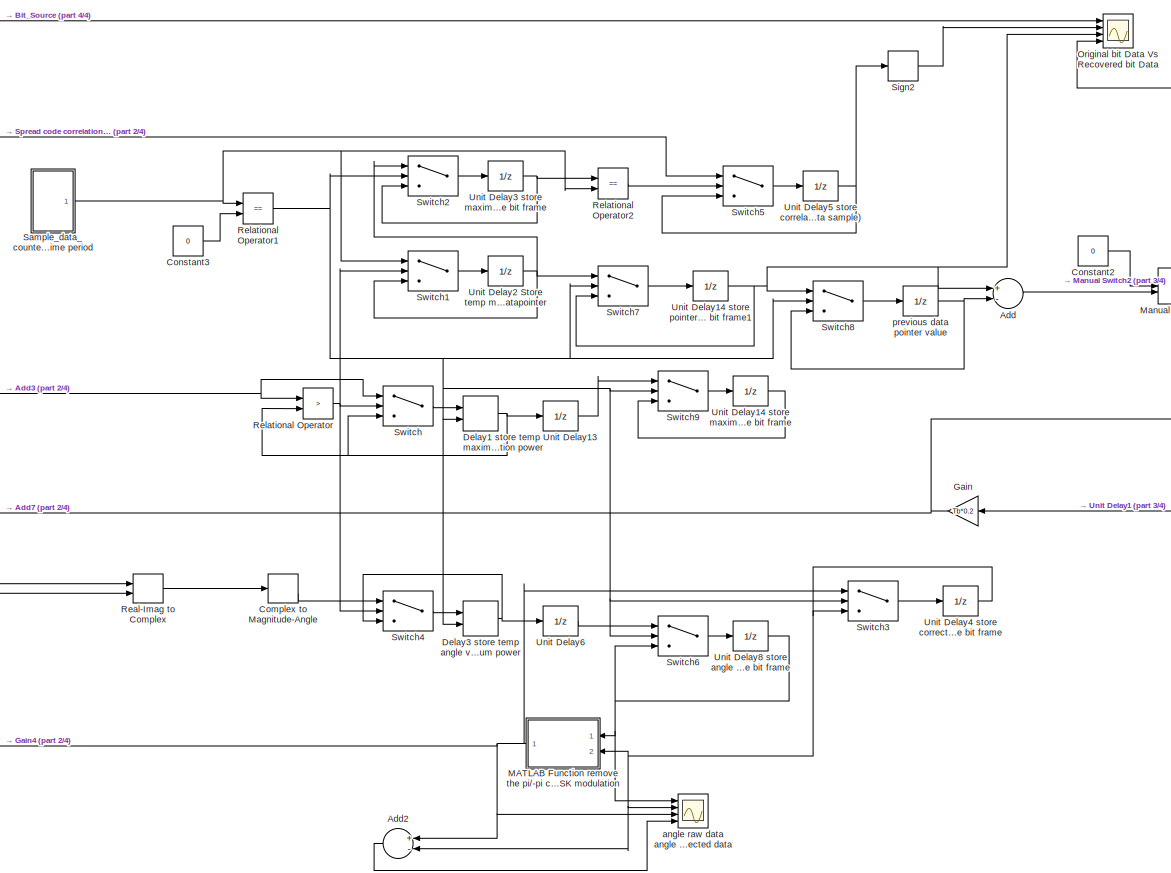
[diagram: root canvas - part 1/4, right side, full height]
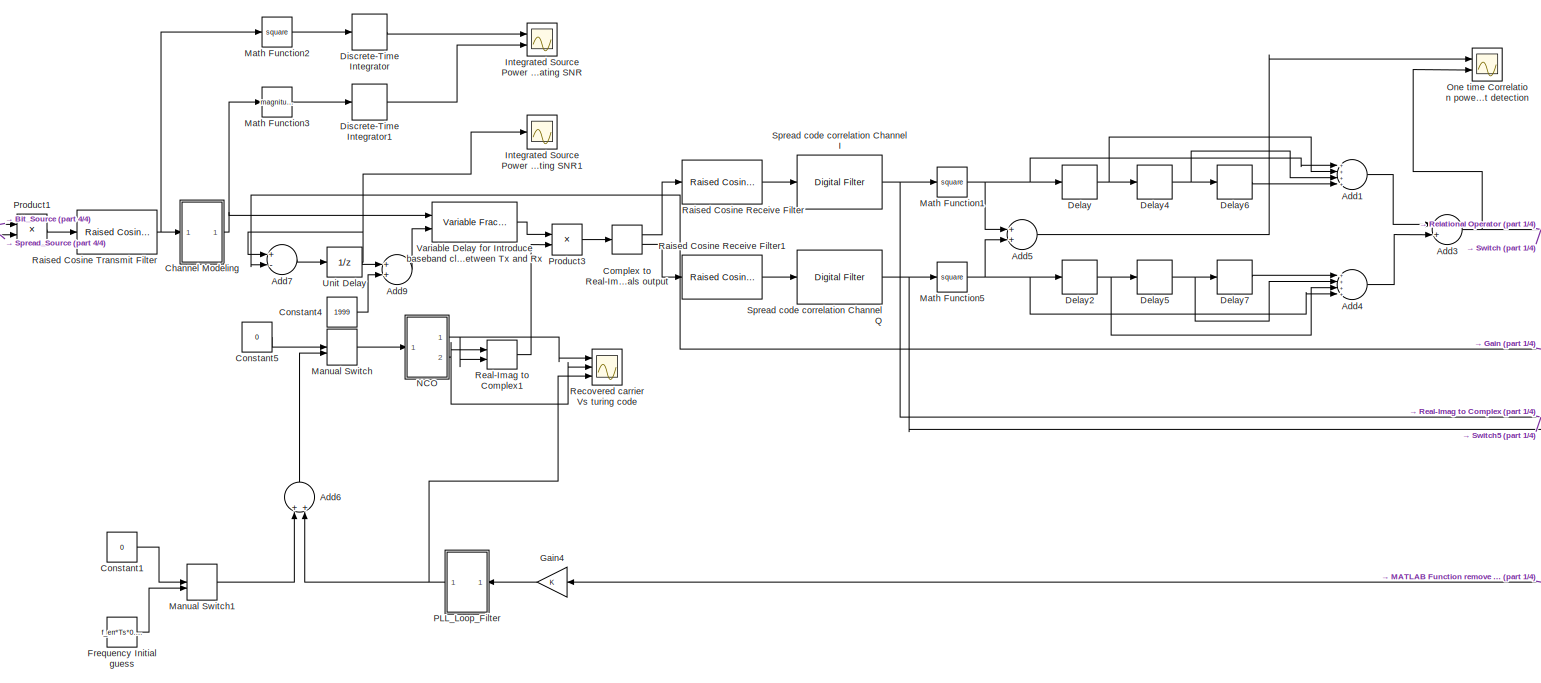
[diagram: root canvas - part 2/4, left side, full height]
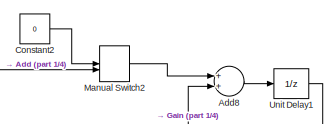
[diagram: root canvas - part 3/4, middle right region]
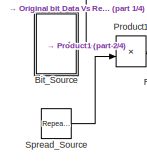
[diagram: root canvas - part 4/4, middle left region]
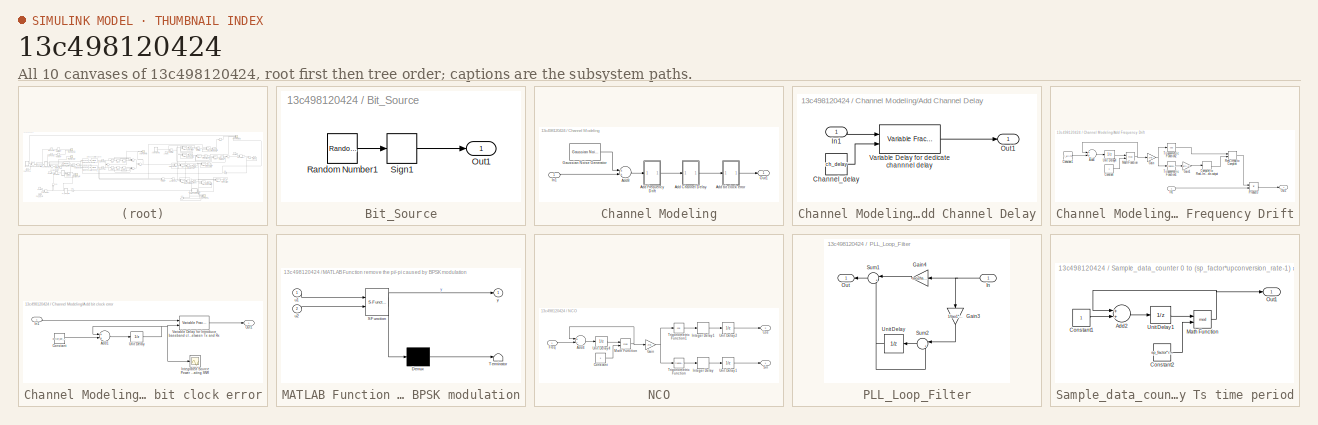
[diagram: thumbnail index - all 10 canvases of the model, root first then tree order]
MODEL slx_13c498120424
KIND model
BLOCK [Sum] Add
  InputSameDT = off
  Inputs = +-
  OutDataTypeStr = Inherit: Inherit via internal rule
  Ports = [2, 1]
  SaturateOnIntegerOverflow = off
BLOCK [Sum] Add1
  InputSameDT = off
  Inputs = ++++
  OutDataTypeStr = Inherit: Inherit via internal rule
  Ports = [4, 1]
  SaturateOnIntegerOverflow = off
BLOCK [Sum] Add2
  InputSameDT = off
  Inputs = +-
  OutDataTypeStr = Inherit: Inherit via internal rule
  Ports = [2, 1]
  SaturateOnIntegerOverflow = off
BLOCK [Sum] Add3
  InputSameDT = off
  OutDataTypeStr = Inherit: Inherit via internal rule
  Ports = [2, 1]
  SaturateOnIntegerOverflow = off
BLOCK [Sum] Add4
  InputSameDT = off
  Inputs = ++++
  OutDataTypeStr = Inherit: Inherit via internal rule
  Ports = [4, 1]
  SaturateOnIntegerOverflow = off
BLOCK [Sum] Add5
  InputSameDT = off
  OutDataTypeStr = Inherit: Inherit via internal rule
  Ports = [2, 1]
  SaturateOnIntegerOverflow = off
BLOCK [Sum] Add6
  InputSameDT = off
  OutDataTypeStr = Inherit: Inherit via internal rule
  Ports = [2, 1]
  SaturateOnIntegerOverflow = off
BLOCK [Sum] Add7
  InputSameDT = off
  Inputs = +-
  OutDataTypeStr = Inherit: Inherit via internal rule
  Ports = [2, 1]
  SaturateOnIntegerOverflow = off
BLOCK [Sum] Add8
  InputSameDT = off
  OutDataTypeStr = Inherit: Inherit via internal rule
  Ports = [2, 1]
  SaturateOnIntegerOverflow = off
BLOCK [Sum] Add9
  InputSameDT = off
  OutDataTypeStr = Inherit: Inherit via internal rule
  Ports = [2, 1]
  SaturateOnIntegerOverflow = off
BLOCK [SubSystem] Bit_Source
  Ports = [0, 1]
  RequestExecContextInheritance = off
BLOCK [Outport] Bit_Source/Out1
  IconDisplay = Port number
BLOCK [RandomNumber] Bit_Source/Random Number1
  SampleTime = Tb
  Seed = 157
BLOCK [Signum] Bit_Source/Sign1
BLOCK [SubSystem] Channel Modeling
  Ports = [1, 1]
  RequestExecContextInheritance = off
BLOCK [SubSystem] Channel Modeling/Add Channel Delay
  Ports = [1, 1]
  RequestExecContextInheritance = off
BLOCK [Constant] Channel Modeling/Add Channel Delay/Channel_delay
  Value = ch_delay
BLOCK [Inport] Channel Modeling/Add Channel Delay/In1
  IconDisplay = Port number
BLOCK [Outport] Channel Modeling/Add Channel Delay/Out1
  IconDisplay = Port number
BLOCK [Reference] Channel Modeling/Add Channel Delay/Variable Delay for dedicate channnel delay  REF=dspsigops/Variable
Fractional Delay
  FarrowL = 4
  InputProcessing = Columns as channels (frame based)
  L = 4
  LockScale = off
  Ports = [2, 1]
  R = 10
  SourceBlock = dspsigops/Variable\nFractional Delay
  SourceType = Variable Fractional Delay
  UserDataPersistent = on
  accumFracLength = 10
  accumMode = Same as product output
  accumWordLength = 32
  alpha = 1
  dmax = 100
  fallbackFIR = Clip to the minimum value necessary for centered kernel
  fallbackFarrow = Clip to the minimum value necessary for centered kernel
  firstCoeffFracLength = 0
  firstCoeffMode = Same word length as input
  firstCoeffWordLength = 32
  ic = 0
  interProdFracLength = 10
  interProdMode = Same as first input
  interProdWordLength = 32
  memoryFracLength = 10
  memoryMode = Same as first input
  memoryWordLength = 32
  mode = OBSOLETE
  modeActive = Farrow
  noDFT = off
  outputFracLength = 10
  outputMode = Same as accumulator
  outputWordLength = 32
  overflowMode = off
  prodOutputFracLength = 10
  prodOutputMode = Same as first input
  prodOutputWordLength = 32
  roundingMode = Zero
  secondCoeffFracLength = 10
  secondCoeffMode = Same as first input
  secondCoeffWordLength = 32
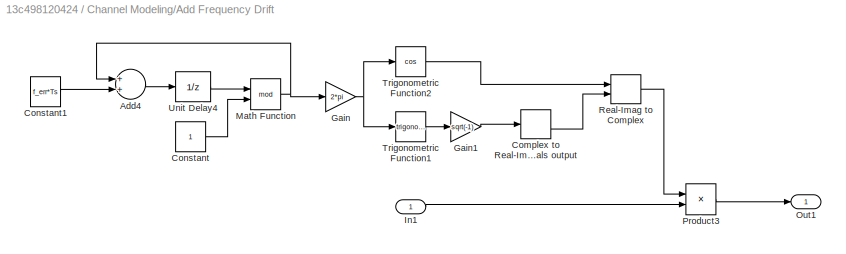
BLOCK [SubSystem] Channel Modeling/Add Frequency Drift
  Ports = [1, 1]
  RequestExecContextInheritance = off
BLOCK [Sum] Channel Modeling/Add Frequency Drift/Add4
  InputSameDT = off
  OutDataTypeStr = Inherit: Inherit via internal rule
  Ports = [2, 1]
  SaturateOnIntegerOverflow = off
BLOCK [ComplexToRealImag] Channel Modeling/Add Frequency Drift/Complex to Real-Imag IQ  signals output
  Ports = [1, 2]
BLOCK [Constant] Channel Modeling/Add Frequency Drift/Constant
BLOCK [Constant] Channel Modeling/Add Frequency Drift/Constant1
  Value = f_err*Ts
BLOCK [Gain] Channel Modeling/Add Frequency Drift/Gain
  Gain = 2*pi
  OutDataTypeStr = Inherit: Inherit via internal rule
  ParamDataTypeStr = Inherit: Inherit via internal rule
  SaturateOnIntegerOverflow = off
BLOCK [Gain] Channel Modeling/Add Frequency Drift/Gain1
  Gain = sqrt(-1)
  OutDataTypeStr = Inherit: Inherit via internal rule
  ParamDataTypeStr = Inherit: Inherit via internal rule
  SaturateOnIntegerOverflow = off
BLOCK [Inport] Channel Modeling/Add Frequency Drift/In1
  IconDisplay = Port number
BLOCK [Math] Channel Modeling/Add Frequency Drift/Math Function
  Operator = mod
  Ports = [2, 1]
BLOCK [Outport] Channel Modeling/Add Frequency Drift/Out1
  IconDisplay = Port number
BLOCK [Product] Channel Modeling/Add Frequency Drift/Product3
  InputSameDT = off
  OutDataTypeStr = Inherit: Inherit via internal rule
  Ports = [2, 1]
  RndMeth = Floor
  SaturateOnIntegerOverflow = off
BLOCK [RealImagToComplex] Channel Modeling/Add Frequency Drift/Real-Imag to Complex
  Ports = [2, 1]
BLOCK [Trigonometry] Channel Modeling/Add Frequency Drift/Trigonometric Function1
  Ports = [1, 1]
BLOCK [Trigonometry] Channel Modeling/Add Frequency Drift/Trigonometric Function2
  Operator = cos
  Ports = [1, 1]
BLOCK [UnitDelay] Channel Modeling/Add Frequency Drift/Unit Delay4
  InputProcessing = Elements as channels (sample based)
  SampleTime = Ts
BLOCK [SubSystem] Channel Modeling/Add bit clock error
  Ports = [1, 1]
  RequestExecContextInheritance = off
BLOCK [Sum] Channel Modeling/Add bit clock error/Add1
  InputSameDT = off
  OutDataTypeStr = Inherit: Inherit via internal rule
  Ports = [2, 1]
  SaturateOnIntegerOverflow = off
BLOCK [Constant] Channel Modeling/Add bit clock error/Constant
  Value = deltaT_per_sample
BLOCK [Inport] Channel Modeling/Add bit clock error/In1
  IconDisplay = Port number
BLOCK [Scope] Channel Modeling/Add bit clock error/Integrated Source Power and Noise Power for Calculating SNR
  DataFormat = StructureWithTime
  Floating = off
  LimitDataPoints = off
  NumInputPorts = 1
  Ports = [1]
  SampleTime = 0
  SaveName = ScopeData5
  ShowLegends = off
  YMax = 15
  YMin = 0
  ZoomMode = yonly
BLOCK [Outport] Channel Modeling/Add bit clock error/Out1
  IconDisplay = Port number
BLOCK [UnitDelay] Channel Modeling/Add bit clock error/Unit Delay
  InputProcessing = Elements as channels (sample based)
  SampleTime = Ts
BLOCK [Reference] Channel Modeling/Add bit clock error/Variable Delay for Introduce baseband clock error between Tx and Rx   REF=dspsigops/Variable
Fractional Delay
  FarrowL = 4
  InputProcessing = Columns as channels (frame based)
  L = 4
  LockScale = off
  Ports = [2, 1]
  R = 10
  SourceBlock = dspsigops/Variable\nFractional Delay
  SourceType = Variable Fractional Delay
  UserDataPersistent = on
  accumFracLength = 10
  accumMode = Same as product output
  accumWordLength = 32
  alpha = 1
  dmax = 2000
  fallbackFIR = Clip to the minimum value necessary for centered kernel
  fallbackFarrow = Clip to the minimum value necessary for centered kernel
  firstCoeffFracLength = 0
  firstCoeffMode = Same word length as input
  firstCoeffWordLength = 32
  ic = 0
  interProdFracLength = 10
  interProdMode = Same as first input
  interProdWordLength = 32
  memoryFracLength = 10
  memoryMode = Same as first input
  memoryWordLength = 32
  mode = OBSOLETE
  modeActive = Linear
  noDFT = off
  outputFracLength = 10
  outputMode = Same as accumulator
  outputWordLength = 32
  overflowMode = off
  prodOutputFracLength = 10
  prodOutputMode = Same as first input
  prodOutputWordLength = 32
  roundingMode = Zero
  secondCoeffFracLength = 10
  secondCoeffMode = Same as first input
  secondCoeffWordLength = 32
BLOCK [Sum] Channel Modeling/Add8
  InputSameDT = off
  OutDataTypeStr = Inherit: Inherit via internal rule
  Ports = [2, 1]
  SaturateOnIntegerOverflow = off
BLOCK [Reference] Channel Modeling/Gaussian Noise Generator  REF=commnoisgen2/Gaussian Noise
Generator
  Ports = [0, 1]
  SourceBlock = commnoisgen2/Gaussian Noise\nGenerator
  SourceType = Gaussian Noise Generator
  Ts = Ts
  d = 1
  frameBased = off
  m = 0
  orient = off
  outDataType = double
  s = 41
  sampPerFrame = 1
BLOCK [Inport] Channel Modeling/In1
  IconDisplay = Port number
BLOCK [Outport] Channel Modeling/Out1
  IconDisplay = Port number
BLOCK [ComplexToMagnitudeAngle] Complex to Magnitude-Angle
  Ports = [1, 2]
BLOCK [ComplexToRealImag] Complex to Real-Imag IQ  signals output
  Ports = [1, 2]
BLOCK [Constant] Constant1
  Value = 0
BLOCK [Constant] Constant2
  Value = 0
BLOCK [Constant] Constant3
  Value = 0
BLOCK [Constant] Constant4
  Value = 1999
BLOCK [Constant] Constant5
  Value = 0
BLOCK [Delay] Delay
  DelayLength = sp_factor*rrc_multiply_rate
  InputPortMap = u0
  Ports = [1, 1]
BLOCK [Delay] Delay1 store temp maximum correlation power
  DelayLength = 1
  ExternalReset = Rising
  InputPortMap = u0,r5
  InputProcessing = Columns as channels (frame based)
  Ports = [2, 1]
BLOCK [Delay] Delay2
  DelayLength = sp_factor*rrc_multiply_rate
  InputPortMap = u0
  Ports = [1, 1]
BLOCK [Delay] Delay3 store temp angle value at temp maximum power
  DelayLength = 1
  ExternalReset = Rising
  InputPortMap = u0,r5
  InputProcessing = Columns as channels (frame based)
  Ports = [2, 1]
BLOCK [Delay] Delay4
  DelayLength = sp_factor*rrc_multiply_rate
  InputPortMap = u0
  Ports = [1, 1]
BLOCK [Delay] Delay5
  DelayLength = sp_factor*rrc_multiply_rate
  InputPortMap = u0
  Ports = [1, 1]
BLOCK [Delay] Delay6
  DelayLength = sp_factor*rrc_multiply_rate
  InputPortMap = u0
  Ports = [1, 1]
BLOCK [Delay] Delay7
  DelayLength = sp_factor*rrc_multiply_rate
  InputPortMap = u0
  Ports = [1, 1]
BLOCK [DiscreteIntegrator] Discrete-Time Integrator
  ICPrevOutput = DiscIntNeverNeededParam
  ICPrevScaledInput = DiscIntNeverNeededParam
  Ports = [1, 1]
  SampleTime = -1
BLOCK [DiscreteIntegrator] Discrete-Time Integrator1
  ICPrevOutput = DiscIntNeverNeededParam
  ICPrevScaledInput = DiscIntNeverNeededParam
  Ports = [1, 1]
  SampleTime = -1
BLOCK [Constant] Frequency Initial guess
  Value = f_err*Ts*0.95
BLOCK [Gain] Gain
  Gain = Tb*0.2
  OutDataTypeStr = Inherit: Inherit via internal rule
  ParamDataTypeStr = Inherit: Inherit via internal rule
  SaturateOnIntegerOverflow = off
BLOCK [Gain] Gain4
  OutDataTypeStr = Inherit: Inherit via internal rule
  ParamDataTypeStr = Inherit: Inherit via internal rule
  SampleTime = Tb
  SaturateOnIntegerOverflow = off
BLOCK [Scope] Integrated Source Power and Noise Power for Calculating SNR
  DataFormat = StructureWithTime
  Floating = off
  LimitDataPoints = off
  NumInputPorts = 2
  Ports = [2]
  SampleTime = 0
  SaveName = ScopeData2
  ShowLegends = off
  YMax = 0.00475~5.25
  YMin = 0~0
  ZoomMode = yonly
BLOCK [Scope] Integrated Source Power and Noise Power for Calculating SNR1
  DataFormat = StructureWithTime
  Floating = off
  LimitDataPoints = off
  NumInputPorts = 1
  Ports = [1]
  SampleTime = 0
  SaveName = ScopeData6
  ShowLegends = off
  YMax = 0
  YMin = -13
  ZoomMode = yonly
BLOCK [SubSystem] MATLAB Function remove the pi//-pi caused by BPSK modulation
  ErrorFcn = Stateflow.Translate.translate
  PermitHierarchicalResolution = ExplicitOnly
  Ports = [2, 1]
  RequestExecContextInheritance = off
  SFBlockType = MATLAB Function
  TreatAsAtomicUnit = on
BLOCK [Demux] MATLAB Function remove the pi//-pi caused by BPSK modulation/ Demux 
  Outputs = 1
  Ports = [1, 1]
BLOCK [S-Function] MATLAB Function remove the pi//-pi caused by BPSK modulation/ SFunction 
  EnableBusSupport = on
  FunctionName = sf_sfun
  PortCounts = [2 2]
  Ports = [2, 2]
  Tag = Stateflow S-Function spcomm2 2
BLOCK [Terminator] MATLAB Function remove the pi//-pi caused by BPSK modulation/ Terminator 
BLOCK [Inport] MATLAB Function remove the pi//-pi caused by BPSK modulation/u1
  IconDisplay = Port number
BLOCK [Inport] MATLAB Function remove the pi//-pi caused by BPSK modulation/u2
  IconDisplay = Port number
  Port = 2
BLOCK [Outport] MATLAB Function remove the pi//-pi caused by BPSK modulation/y
  IconDisplay = Port number
BLOCK [ManualSwitch] Manual Switch
  CurrentSetting = 0
BLOCK [ManualSwitch] Manual Switch1
  CurrentSetting = 0
BLOCK [ManualSwitch] Manual Switch2
  CurrentSetting = 0
BLOCK [Math] Math Function1
  Operator = square
  Ports = [1, 1]
BLOCK [Math] Math Function2
  Operator = square
  Ports = [1, 1]
BLOCK [Math] Math Function3
  Operator = magnitude^2
  Ports = [1, 1]
BLOCK [Math] Math Function5
  Operator = square
  Ports = [1, 1]
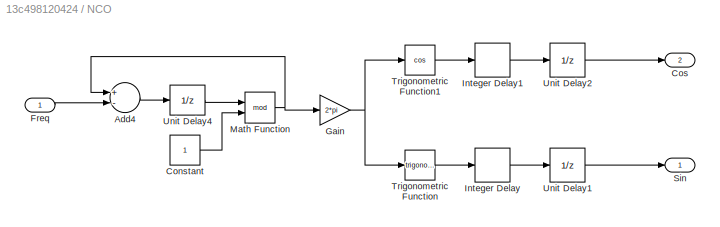
BLOCK [SubSystem] NCO
  Ports = [1, 2]
  RequestExecContextInheritance = off
BLOCK [Sum] NCO/Add4
  InputSameDT = off
  Inputs = +-
  OutDataTypeStr = Inherit: Inherit via internal rule
  Ports = [2, 1]
  SaturateOnIntegerOverflow = off
BLOCK [Constant] NCO/Constant
BLOCK [Outport] NCO/Cos
  IconDisplay = Port number
  Port = 2
BLOCK [Inport] NCO/Freq
  IconDisplay = Port number
BLOCK [Gain] NCO/Gain
  Gain = 2*pi
  OutDataTypeStr = Inherit: Inherit via internal rule
  ParamDataTypeStr = Inherit: Inherit via internal rule
  SaturateOnIntegerOverflow = off
BLOCK [Delay] NCO/Integer Delay
  DelayLength = 20
  InputPortMap = u0
  InputProcessing = Inherited
  Ports = [1, 1]
BLOCK [Delay] NCO/Integer Delay1
  DelayLength = 20
  InputPortMap = u0
  InputProcessing = Inherited
  Ports = [1, 1]
BLOCK [Math] NCO/Math Function
  Operator = mod
  Ports = [2, 1]
BLOCK [Outport] NCO/Sin
  IconDisplay = Port number
BLOCK [Trigonometry] NCO/Trigonometric Function
  Ports = [1, 1]
BLOCK [Trigonometry] NCO/Trigonometric Function1
  Operator = cos
  Ports = [1, 1]
BLOCK [UnitDelay] NCO/Unit Delay1
  SampleTime = -1
BLOCK [UnitDelay] NCO/Unit Delay2
  SampleTime = -1
BLOCK [UnitDelay] NCO/Unit Delay4
  InputProcessing = Elements as channels (sample based)
  SampleTime = Ts
BLOCK [Scope] One time Correlation power Vs four time Correlation power for improve data start point detection
  DataFormat = StructureWithTime
  Floating = off
  LimitDataPoints = off
  NumInputPorts = 2
  Ports = [2]
  SampleTime = 0
  SaveName = ScopeData4
  ShowLegends = off
  YMax = 85000~300000
  YMin = 0~0
  ZoomMode = xonly
BLOCK [Scope] Original bit Data Vs Recovered bit Data
  DataFormat = StructureWithTime
  Floating = off
  LimitDataPoints = off
  NumInputPorts = 4
  Ports = [4]
  SampleTime = 0
  SaveName = ScopeData3
  ShowLegends = off
  YMax = 1~5.25~1100~0.00011
  YMin = -1~0~0~0
  ZoomMode = yonly
BLOCK [SubSystem] PLL_Loop_Filter
  Ports = [1, 1]
  RequestExecContextInheritance = off
BLOCK [Gain] PLL_Loop_Filter/Gain3
  Gain = 1/tao1*Tb
  OutDataTypeStr = Inherit: Inherit via internal rule
  ParamDataTypeStr = Inherit: Inherit via internal rule
  SampleTime = Tb
  SaturateOnIntegerOverflow = off
BLOCK [Gain] PLL_Loop_Filter/Gain4
  Gain = tao2/tao1
  OutDataTypeStr = Inherit: Inherit via internal rule
  ParamDataTypeStr = Inherit: Inherit via internal rule
  SampleTime = Tb
  SaturateOnIntegerOverflow = off
BLOCK [Inport] PLL_Loop_Filter/In
  IconDisplay = Port number
BLOCK [Outport] PLL_Loop_Filter/Out
  IconDisplay = Port number
BLOCK [Sum] PLL_Loop_Filter/Sum1
  IconShape = round
  InputSameDT = off
  Inputs = |++
  OutDataTypeStr = Inherit: Inherit via internal rule
  Ports = [2, 1]
  SaturateOnIntegerOverflow = off
BLOCK [Sum] PLL_Loop_Filter/Sum2
  IconShape = round
  InputSameDT = off
  Inputs = |++
  OutDataTypeStr = Inherit: Inherit via internal rule
  Ports = [2, 1]
  SaturateOnIntegerOverflow = off
BLOCK [UnitDelay] PLL_Loop_Filter/Unit Delay
  InputProcessing = Elements as channels (sample based)
  SampleTime = Tb
BLOCK [Product] Product1
  InputSameDT = off
  OutDataTypeStr = Inherit: Inherit via internal rule
  Ports = [2, 1]
  RndMeth = Floor
  SampleTime = Tspb
  SaturateOnIntegerOverflow = off
BLOCK [Product] Product3
  InputSameDT = off
  OutDataTypeStr = Inherit: Inherit via internal rule
  Ports = [2, 1]
  RndMeth = Floor
  SaturateOnIntegerOverflow = off
BLOCK [Reference] Raised Cosine Receive Filter  REF=commfilt2/Raised Cosine
Receive Filter
  D = (rrc_span_symbol)/2
  InputProcessing = Columns as channels (frame based)
  LockScale = off
  N = rrc_multiply_rate
  Ports = [1, 1]
  R = rolloff
  SourceBlock = commfilt2/Raised Cosine\nReceive Filter
  SourceType = Raised Cosine Receive Filter
  UserDataPersistent = on
  accumFracLength = 30
  accumMode = Same as product output
  accumWordLength = 32
  checkCoeff = off
  checkGain = Normalized
  coeffFracLength = 15
  coeffMode = Same word length as input
  coeffWordLength = 16
  currentFiltSpan = rrc_span_symbol
  downFactor = 1
  downOffset = 0
  filtSpan = rrc_span_symbol
  filtType = Square root
  filterGain = 1
  framing = Enforce single-rate processing
  launchFVT = on
  outputFracLength = 15
  outputMode = Same as accumulator
  outputWordLength = 16
  overflowMode = off
  prodOutputFracLength = 30
  prodOutputMode = Same as input
  prodOutputWordLength = 32
  rateMode = Downsampling
  roundingMode = Floor
  sampMode = Mute
  saveAsFlag = 0
  variableName = rcRxFilt
BLOCK [Reference] Raised Cosine Receive Filter1  REF=commfilt2/Raised Cosine
Receive Filter
  D = (rrc_span_symbol)/2
  InputProcessing = Columns as channels (frame based)
  LockScale = off
  N = rrc_multiply_rate
  Ports = [1, 1]
  R = rolloff
  SourceBlock = commfilt2/Raised Cosine\nReceive Filter
  SourceType = Raised Cosine Receive Filter
  UserDataPersistent = on
  accumFracLength = 30
  accumMode = Same as product output
  accumWordLength = 32
  checkCoeff = off
  checkGain = Normalized
  coeffFracLength = 15
  coeffMode = Same word length as input
  coeffWordLength = 16
  currentFiltSpan = rrc_span_symbol
  downFactor = 1
  downOffset = 0
  filtSpan = rrc_span_symbol
  filtType = Square root
  filterGain = 1
  framing = Enforce single-rate processing
  launchFVT = on
  outputFracLength = 15
  outputMode = Same as accumulator
  outputWordLength = 16
  overflowMode = off
  prodOutputFracLength = 30
  prodOutputMode = Same as input
  prodOutputWordLength = 32
  rateMode = Downsampling
  roundingMode = Floor
  sampMode = Mute
  saveAsFlag = 0
  variableName = rcRxFilt1
BLOCK [Reference] Raised Cosine Transmit Filter  REF=commfilt2/Raised Cosine
Transmit Filter
  D = (16)/2
  InputProcessing = Elements as channels (sample based)
  LockScale = off
  N = rrc_multiply_rate
  Ports = [1, 1]
  R = rolloff
  SourceBlock = commfilt2/Raised Cosine\nTransmit Filter
  SourceType = Raised Cosine Transmit Filter
  UserDataPersistent = on
  accumFracLength = 30
  accumMode = Same as input
  accumWordLength = 32
  checkCoeff = off
  checkGain = Normalized
  coeffFracLength = 15
  coeffMode = Same word length as input
  coeffWordLength = 16
  currentFiltSpan = 16
  filtSpan = rrc_span_symbol
  filtType = Square root
  filterGain = 1
  framing = Allow multirate processing
  launchFVT = on
  outputFracLength = 15
  outputMode = Same as input
  outputWordLength = 16
  overflowMode = off
  prodOutputFracLength = 30
  prodOutputMode = Same as input
  prodOutputWordLength = 32
  roundingMode = Floor
  sampMode = Mute
  saveAsFlag = 0
  variableName = rcTxFilt1
BLOCK [RealImagToComplex] Real-Imag to Complex
  Ports = [2, 1]
BLOCK [RealImagToComplex] Real-Imag to Complex1
  Ports = [2, 1]
BLOCK [Scope] Recovered carrier Vs turing code
  DataFormat = StructureWithTime
  Floating = off
  LimitDataPoints = off
  MaxDataPoints = 200000
  NumInputPorts = 3
  Ports = [3]
  SampleTime = 0
  SaveName = ScopeData1
  ShowLegends = off
  TimeRange = 0.01
  YMax = -0.05~0.7~6.545e-07
  YMin = -1~-1~6.51e-07
  ZoomMode = yonly
BLOCK [RelationalOperator] Relational Operator
  InputSameDT = off
  Operator = >
  OutDataTypeStr = boolean
  Ports = [2, 1]
BLOCK [RelationalOperator] Relational Operator1
  InputSameDT = off
  Operator = ==
  OutDataTypeStr = boolean
  Ports = [2, 1]
BLOCK [RelationalOperator] Relational Operator2
  InputSameDT = off
  Operator = ==
  OutDataTypeStr = boolean
  Ports = [2, 1]
BLOCK [SubSystem] Sample_data_counter 0 to (sp_factor*upconversion_rate-1) count every Ts time period
  Ports = [0, 1]
  RequestExecContextInheritance = off
BLOCK [Sum] Sample_data_counter 0 to (sp_factor*upconversion_rate-1) count every Ts time period/Add2
  InputSameDT = off
  OutDataTypeStr = Inherit: Inherit via internal rule
  Ports = [2, 1]
  SampleTime = 1/bit_rate/sp_factor/rrc_multiply_rate
  SaturateOnIntegerOverflow = off
BLOCK [Constant] Sample_data_counter 0 to (sp_factor*upconversion_rate-1) count every Ts time period/Constant1
BLOCK [Constant] Sample_data_counter 0 to (sp_factor*upconversion_rate-1) count every Ts time period/Constant2
  Value = sp_factor*rrc_multiply_rate
BLOCK [Math] Sample_data_counter 0 to (sp_factor*upconversion_rate-1) count every Ts time period/Math Function
  Operator = mod
  Ports = [2, 1]
BLOCK [Outport] Sample_data_counter 0 to (sp_factor*upconversion_rate-1) count every Ts time period/Out1
  IconDisplay = Port number
BLOCK [UnitDelay] Sample_data_counter 0 to (sp_factor*upconversion_rate-1) count every Ts time period/Unit Delay1
  InputProcessing = Elements as channels (sample based)
  SampleTime = -1
BLOCK [Signum] Sign2
BLOCK [Reference] Spread code correlation Channel I  REF=dsparch4/Digital Filter
  AllPoleFiltStruct = Direct form
  BiQuadCoeffs = [1 0.3 0.4 1 0.1 0.2]
  CoeffSource = Specify via dialog
  DenCoeffs = [1 0.1]
  FIRFiltStruct = Direct form
  FiltPerSampPopup = One filter per frame
  FilterSource = Specify via dialog
  IC = 0
  ICden = 0
  ICnum = 0
  IIRFiltStruct = Direct form II transposed
  InputProcessing = Columns as channels (frame based)
  LatticeCoeffs = [0.2 0.4]
  LockScale = off
  NumCoeffs = spread_code_up
  Ports = [1, 1]
  ScaleValues = 1
  SourceBlock = dsparch4/Digital Filter
  SourceType = Digital Filter
  TypePopup = FIR (all zeros)
  UserDataPersistent = on
  accumFracLength = 30
  accumMode = Same as product output
  accumWordLength = 32
  additionalParams = off
  allowOverrides = on
  denIgnore = on
  dfiltObjectName = dfilt.dffir([1 2 1])
  firstCoeffFracLength = 15
  firstCoeffMode = Same word length as input
  firstCoeffWordLength = 16
  memoryFracLength = 15
  memoryMode = Same as accumulator
  memoryWordLength = 16
  multiplicandFracLength = 30
  multiplicandMode = Same as output
  multiplicandWordLength = 32
  outputFracLength = 15
  outputMode = Same as accumulator
  outputWordLength = 16
  overflowMode = off
  prodOutputFracLength = 30
  prodOutputMode = Same as input
  prodOutputWordLength = 32
  roundingMode = Floor
  scaleValueFracLength = 14
  secondCoeffFracLength = 15
  secondCoeffMode = Same as numerator
  secondCoeffWordLength = 16
  showAcc = off
  showCoeff = off
  showMem = off
  showMpy = off
  showOut = off
  stageIOMode = Same as input
  stageIOWordLength = 16
  stageInFracLength = 15
  stageOutFracLength = 15
  tapSumFracLength = 30
  tapSumMode = Same as input
  tapSumWordLength = 32
  thirdCoeffFracLength = 15
  thirdCoeffMode = Same as input
  thirdCoeffWordLength = 16
BLOCK [Reference] Spread code correlation Channel Q  REF=dsparch4/Digital Filter
  AllPoleFiltStruct = Direct form
  BiQuadCoeffs = [1 0.3 0.4 1 0.1 0.2]
  CoeffSource = Specify via dialog
  DenCoeffs = [1 0.1]
  FIRFiltStruct = Direct form
  FiltPerSampPopup = One filter per frame
  FilterSource = Specify via dialog
  IC = 0
  ICden = 0
  ICnum = 0
  IIRFiltStruct = Direct form II transposed
  InputProcessing = Columns as channels (frame based)
  LatticeCoeffs = [0.2 0.4]
  LockScale = off
  NumCoeffs = spread_code_up
  Ports = [1, 1]
  ScaleValues = 1
  SourceBlock = dsparch4/Digital Filter
  SourceType = Digital Filter
  TypePopup = FIR (all zeros)
  UserDataPersistent = on
  accumFracLength = 30
  accumMode = Same as product output
  accumWordLength = 32
  additionalParams = off
  allowOverrides = on
  denIgnore = on
  dfiltObjectName = dfilt.dffir([1 2 1])
  firstCoeffFracLength = 15
  firstCoeffMode = Same word length as input
  firstCoeffWordLength = 16
  memoryFracLength = 15
  memoryMode = Same as accumulator
  memoryWordLength = 16
  multiplicandFracLength = 30
  multiplicandMode = Same as output
  multiplicandWordLength = 32
  outputFracLength = 15
  outputMode = Same as accumulator
  outputWordLength = 16
  overflowMode = off
  prodOutputFracLength = 30
  prodOutputMode = Same as input
  prodOutputWordLength = 32
  roundingMode = Floor
  scaleValueFracLength = 14
  secondCoeffFracLength = 15
  secondCoeffMode = Same as numerator
  secondCoeffWordLength = 16
  showAcc = off
  showCoeff = off
  showMem = off
  showMpy = off
  showOut = off
  stageIOMode = Same as input
  stageIOWordLength = 16
  stageInFracLength = 15
  stageOutFracLength = 15
  tapSumFracLength = 30
  tapSumMode = Same as input
  tapSumWordLength = 32
  thirdCoeffFracLength = 15
  thirdCoeffMode = Same as input
  thirdCoeffWordLength = 16
BLOCK [Reference] Spread_Source  REF=simulink/Sources/Repeating
Sequence
Stair
  ConRadixGroup = Best Precision: Vector-wise
  LockScale = off
  OutDataType = fixdt(0,8)
  OutDataTypeStr = double
  OutMax = []
  OutMin = []
  OutScaling = 2^-12
  OutValues = spread_code'
  OutputDataTypeScalingMode = double
  Ports = [0, 1]
  SourceBlock = simulink/Sources/Repeating\nSequence\nStair
  SourceType = Repeating Sequence Stair
  tsamp = Tspb
BLOCK [Switch] Switch
  Criteria = u2 > Threshold
  InputSameDT = off
  SaturateOnIntegerOverflow = off
  Threshold = 0.5
BLOCK [Switch] Switch1
  Criteria = u2 > Threshold
  InputSameDT = off
  SaturateOnIntegerOverflow = off
  Threshold = 0.5
BLOCK [Switch] Switch2
  Criteria = u2 > Threshold
  InputSameDT = off
  SaturateOnIntegerOverflow = off
  Threshold = 0.5
BLOCK [Switch] Switch3
  Criteria = u2 > Threshold
  InputSameDT = off
  SaturateOnIntegerOverflow = off
  Threshold = 0.5
BLOCK [Switch] Switch4
  Criteria = u2 > Threshold
  InputSameDT = off
  SaturateOnIntegerOverflow = off
  Threshold = 0.5
BLOCK [Switch] Switch5
  Criteria = u2 > Threshold
  InputSameDT = off
  SaturateOnIntegerOverflow = off
  Threshold = 0.5
BLOCK [Switch] Switch6
  Criteria = u2 > Threshold
  InputSameDT = off
  SaturateOnIntegerOverflow = off
  Threshold = 0.5
BLOCK [Switch] Switch7
  Criteria = u2 > Threshold
  InputSameDT = off
  SaturateOnIntegerOverflow = off
  Threshold = 0.5
BLOCK [Switch] Switch8
  Criteria = u2 > Threshold
  InputSameDT = off
  SaturateOnIntegerOverflow = off
  Threshold = 0.5
BLOCK [Switch] Switch9
  Criteria = u2 > Threshold
  InputSameDT = off
  SaturateOnIntegerOverflow = off
  Threshold = 0.5
BLOCK [UnitDelay] Unit Delay
  InputProcessing = Elements as channels (sample based)
  SampleTime = Ts
BLOCK [UnitDelay] Unit Delay1
  InputProcessing = Elements as channels (sample based)
  SampleTime = Tb
BLOCK [UnitDelay] Unit Delay13
  InputProcessing = Elements as channels (sample based)
  SampleTime = -1
BLOCK [UnitDelay] Unit Delay14 store maximum correlation power at one bit frame
  InputProcessing = Elements as channels (sample based)
  SampleTime = -1
BLOCK [UnitDelay] Unit Delay14 store pointer at one bit frame1
  InputProcessing = Elements as channels (sample based)
  SampleTime = -1
BLOCK [UnitDelay] Unit Delay2 Store temp maximum datapointer
  InputProcessing = Elements as channels (sample based)
  SampleTime = -1
BLOCK [UnitDelay] Unit Delay3 store maximum datapointer for one source bit frame
  InputProcessing = Elements as channels (sample based)
  SampleTime = -1
BLOCK [UnitDelay] Unit Delay4 store corrected angle value at maximum power for one bit frame
  InputProcessing = Elements as channels (sample based)
  SampleTime = -1
BLOCK [UnitDelay] Unit Delay5 store correlate data sample at datapointer time (recovered data sample)
  InputProcessing = Elements as channels (sample based)
  SampleTime = -1
BLOCK [UnitDelay] Unit Delay6
  InputProcessing = Elements as channels (sample based)
  SampleTime = -1
BLOCK [UnitDelay] Unit Delay8 store angle value at maximum power for one bit frame
  InputProcessing = Elements as channels (sample based)
  SampleTime = -1
BLOCK [Reference] Variable Delay for Introduce baseband clock error between Tx and Rx   REF=dspsigops/Variable
Fractional Delay
  FarrowL = 4
  InputProcessing = Columns as channels (frame based)
  L = 4
  LockScale = off
  Ports = [2, 1]
  R = 10
  SourceBlock = dspsigops/Variable\nFractional Delay
  SourceType = Variable Fractional Delay
  UserDataPersistent = on
  accumFracLength = 10
  accumMode = Same as product output
  accumWordLength = 32
  alpha = 1
  dmax = 2000
  fallbackFIR = Clip to the minimum value necessary for centered kernel
  fallbackFarrow = Clip to the minimum value necessary for centered kernel
  firstCoeffFracLength = 0
  firstCoeffMode = Same word length as input
  firstCoeffWordLength = 32
  ic = 0
  interProdFracLength = 10
  interProdMode = Same as first input
  interProdWordLength = 32
  memoryFracLength = 10
  memoryMode = Same as first input
  memoryWordLength = 32
  mode = OBSOLETE
  modeActive = Linear
  noDFT = off
  outputFracLength = 10
  outputMode = Same as accumulator
  outputWordLength = 32
  overflowMode = off
  prodOutputFracLength = 10
  prodOutputMode = Same as first input
  prodOutputWordLength = 32
  roundingMode = Zero
  secondCoeffFracLength = 10
  secondCoeffMode = Same as first input
  secondCoeffWordLength = 32
BLOCK [Scope] angle raw data angle corrected data
  DataFormat = StructureWithTime
  Floating = off
  LimitDataPoints = off
  NumInputPorts = 4
  Ports = [4]
  SampleTime = 0
  ShowLegends = off
  YMax = 3.5~6~6~3
  YMin = -3.5~-3.5~-3.5~-5.5
  ZoomMode = yonly
BLOCK [UnitDelay] previous data pointer value
  InputProcessing = Elements as channels (sample based)
  SampleTime = -1
LINE Add1:1 -> Add3:1
LINE Add2:1 -> angle raw data angle corrected data:4
NET Add3:1 -> One time Correlation power Vs four time Correlation power for improve data start point detection:2, Relational Operator:1, Switch:1
LINE Add4:1 -> Add3:2
LINE Add5:1 -> One time Correlation power Vs four time Correlation power for improve data start point detection:1
LINE Add6:1 -> Manual Switch:2
LINE Add7:1 -> Unit Delay:1
LINE Add8:1 -> Unit Delay1:1
LINE Add9:1 -> Variable Delay for Introduce baseband clock error between Tx and Rx :2
LINE Add:1 -> Manual Switch2:2
LINE Bit_Source/Random Number1:1 -> Bit_Source/Sign1:1
LINE Bit_Source/Sign1:1 -> Bit_Source/Out1:1
NET Bit_Source:1 -> Original bit Data Vs Recovered bit Data:1, Product1:1
LINE Channel Modeling/Add Channel Delay/Channel_delay:1 -> Channel Modeling/Add Channel Delay/Variable Delay for dedicate channnel delay:2
LINE Channel Modeling/Add Channel Delay/In1:1 -> Channel Modeling/Add Channel Delay/Variable Delay for dedicate channnel delay:1
LINE Channel Modeling/Add Channel Delay/Variable Delay for dedicate channnel delay:1 -> Channel Modeling/Add Channel Delay/Out1:1
LINE Channel Modeling/Add Channel Delay:1 -> Channel Modeling/Add bit clock error:1
LINE Channel Modeling/Add Frequency Drift/Add4:1 -> Channel Modeling/Add Frequency Drift/Unit Delay4:1
LINE Channel Modeling/Add Frequency Drift/Complex to Real-Imag IQ  signals output:2 -> Channel Modeling/Add Frequency Drift/Real-Imag to Complex:2
LINE Channel Modeling/Add Frequency Drift/Constant1:1 -> Channel Modeling/Add Frequency Drift/Add4:2
LINE Channel Modeling/Add Frequency Drift/Constant:1 -> Channel Modeling/Add Frequency Drift/Math Function:2
LINE Channel Modeling/Add Frequency Drift/Gain1:1 -> Channel Modeling/Add Frequency Drift/Complex to Real-Imag IQ  signals output:1
NET Channel Modeling/Add Frequency Drift/Gain:1 -> Channel Modeling/Add Frequency Drift/Trigonometric Function1:1, Channel Modeling/Add Frequency Drift/Trigonometric Function2:1
LINE Channel Modeling/Add Frequency Drift/In1:1 -> Channel Modeling/Add Frequency Drift/Product3:2
NET Channel Modeling/Add Frequency Drift/Math Function:1 -> Channel Modeling/Add Frequency Drift/Add4:1, Channel Modeling/Add Frequency Drift/Gain:1
LINE Channel Modeling/Add Frequency Drift/Product3:1 -> Channel Modeling/Add Frequency Drift/Out1:1
LINE Channel Modeling/Add Frequency Drift/Real-Imag to Complex:1 -> Channel Modeling/Add Frequency Drift/Product3:1
LINE Channel Modeling/Add Frequency Drift/Trigonometric Function1:1 -> Channel Modeling/Add Frequency Drift/Gain1:1
LINE Channel Modeling/Add Frequency Drift/Trigonometric Function2:1 -> Channel Modeling/Add Frequency Drift/Real-Imag to Complex:1
LINE Channel Modeling/Add Frequency Drift/Unit Delay4:1 -> Channel Modeling/Add Frequency Drift/Math Function:1
LINE Channel Modeling/Add Frequency Drift:1 -> Channel Modeling/Add Channel Delay:1
LINE Channel Modeling/Add bit clock error/Add1:1 -> Channel Modeling/Add bit clock error/Unit Delay:1
LINE Channel Modeling/Add bit clock error/Constant:1 -> Channel Modeling/Add bit clock error/Add1:2
LINE Channel Modeling/Add bit clock error/In1:1 -> Channel Modeling/Add bit clock error/Variable Delay for Introduce baseband clock error between Tx and Rx :1
NET Channel Modeling/Add bit clock error/Unit Delay:1 -> Channel Modeling/Add bit clock error/Add1:1, Channel Modeling/Add bit clock error/Integrated Source Power and Noise Power for Calculating SNR:1, Channel Modeling/Add bit clock error/Variable Delay for Introduce baseband clock error between Tx and Rx :2
LINE Channel Modeling/Add bit clock error/Variable Delay for Introduce baseband clock error between Tx and Rx :1 -> Channel Modeling/Add bit clock error/Out1:1
LINE Channel Modeling/Add bit clock error:1 -> Channel Modeling/Out1:1
LINE Channel Modeling/Add8:1 -> Channel Modeling/Add Frequency Drift:1
LINE Channel Modeling/Gaussian Noise Generator:1 -> Channel Modeling/Add8:1
LINE Channel Modeling/In1:1 -> Channel Modeling/Add8:2
NET Channel Modeling:1 -> Math Function3:1, Variable Delay for Introduce baseband clock error between Tx and Rx :1
LINE Complex to Magnitude-Angle:2 -> Switch4:1
LINE Complex to Real-Imag IQ  signals output:1 -> Raised Cosine Receive Filter:1
LINE Complex to Real-Imag IQ  signals output:2 -> Raised Cosine Receive Filter1:1
LINE Constant1:1 -> Manual Switch1:1
LINE Constant2:1 -> Manual Switch2:1
LINE Constant3:1 -> Relational Operator1:2
LINE Constant4:1 -> Add9:2
LINE Constant5:1 -> Manual Switch:1
NET Delay1 store temp maximum correlation power:1 -> Relational Operator:2, Switch:3, Unit Delay13:1
NET Delay2:1 -> Add4:3, Delay5:1
NET Delay3 store temp angle value at temp maximum power:1 -> Switch4:3, Unit Delay6:1
NET Delay4:1 -> Add1:3, Delay6:1
NET Delay5:1 -> Add4:2, Delay7:1
LINE Delay6:1 -> Add1:4
LINE Delay7:1 -> Add4:1
NET Delay:1 -> Add1:2, Delay4:1
LINE Discrete-Time Integrator1:1 -> Integrated Source Power and Noise Power for Calculating SNR:2
LINE Discrete-Time Integrator:1 -> Integrated Source Power and Noise Power for Calculating SNR:1
LINE Frequency Initial guess:1 -> Manual Switch1:2
LINE Gain4:1 -> PLL_Loop_Filter:1
NET Gain:1 -> Add7:2, Original bit Data Vs Recovered bit Data:4
NET MATLAB Function remove the pi//-pi caused by BPSK modulation:1 -> Add2:1, Gain4:1, Switch3:1, angle raw data angle corrected data:3
LINE Manual Switch1:1 -> Add6:1
LINE Manual Switch2:1 -> Add8:1
LINE Manual Switch:1 -> NCO:1
NET Math Function1:1 -> Add1:1, Add5:1, Delay:1
LINE Math Function2:1 -> Discrete-Time Integrator:1
LINE Math Function3:1 -> Discrete-Time Integrator1:1
NET Math Function5:1 -> Add4:4, Add5:2, Delay2:1
LINE NCO/Add4:1 -> NCO/Unit Delay4:1
LINE NCO/Constant:1 -> NCO/Math Function:2
LINE NCO/Freq:1 -> NCO/Add4:2
NET NCO/Gain:1 -> NCO/Trigonometric Function1:1, NCO/Trigonometric Function:1
LINE NCO/Integer Delay1:1 -> NCO/Unit Delay2:1
LINE NCO/Integer Delay:1 -> NCO/Unit Delay1:1
NET NCO/Math Function:1 -> NCO/Add4:1, NCO/Gain:1
LINE NCO/Trigonometric Function1:1 -> NCO/Integer Delay1:1
LINE NCO/Trigonometric Function:1 -> NCO/Integer Delay:1
LINE NCO/Unit Delay1:1 -> NCO/Sin:1
LINE NCO/Unit Delay2:1 -> NCO/Cos:1
LINE NCO/Unit Delay4:1 -> NCO/Math Function:1
NET NCO:1 -> Real-Imag to Complex1:2, Recovered carrier Vs turing code:1
NET NCO:2 -> Real-Imag to Complex1:1, Recovered carrier Vs turing code:2
LINE PLL_Loop_Filter/Gain3:1 -> PLL_Loop_Filter/Sum2:1
LINE PLL_Loop_Filter/Gain4:1 -> PLL_Loop_Filter/Sum1:1
NET PLL_Loop_Filter/In:1 -> PLL_Loop_Filter/Gain3:1, PLL_Loop_Filter/Gain4:1
LINE PLL_Loop_Filter/Sum1:1 -> PLL_Loop_Filter/Out:1
LINE PLL_Loop_Filter/Sum2:1 -> PLL_Loop_Filter/Unit Delay:1
NET PLL_Loop_Filter/Unit Delay:1 -> PLL_Loop_Filter/Sum1:2, PLL_Loop_Filter/Sum2:2
NET PLL_Loop_Filter:1 -> Add6:2, Recovered carrier Vs turing code:3
LINE Product1:1 -> Raised Cosine Transmit Filter:1
LINE Product3:1 -> Complex to Real-Imag IQ  signals output:1
LINE Raised Cosine Receive Filter1:1 -> Spread code correlation Channel Q:1
LINE Raised Cosine Receive Filter:1 -> Spread code correlation Channel I:1
NET Raised Cosine Transmit Filter:1 -> Channel Modeling:1, Math Function2:1
LINE Real-Imag to Complex1:1 -> Product3:2
LINE Real-Imag to Complex:1 -> Complex to Magnitude-Angle:1
NET Relational Operator1:1 -> Delay1 store temp maximum correlation power:2, Delay3 store temp angle value at temp maximum power:2, Switch2:2, Switch3:2, Switch6:2, Switch7:2, Switch8:2, Switch9:2
LINE Relational Operator2:1 -> Switch5:2
NET Relational Operator:1 -> Switch1:2, Switch4:2, Switch:2
LINE Sample_data_counter 0 to (sp_factor*upconversion_rate-1) count every Ts time period/Add2:1 -> Sample_data_counter 0 to (sp_factor*upconversion_rate-1) count every Ts time period/Unit Delay1:1
LINE Sample_data_counter 0 to (sp_factor*upconversion_rate-1) count every Ts time period/Constant1:1 -> Sample_data_counter 0 to (sp_factor*upconversion_rate-1) count every Ts time period/Add2:2
LINE Sample_data_counter 0 to (sp_factor*upconversion_rate-1) count every Ts time period/Constant2:1 -> Sample_data_counter 0 to (sp_factor*upconversion_rate-1) count every Ts time period/Math Function:2
NET Sample_data_counter 0 to (sp_factor*upconversion_rate-1) count every Ts time period/Math Function:1 -> Sample_data_counter 0 to (sp_factor*upconversion_rate-1) count every Ts time period/Add2:1, Sample_data_counter 0 to (sp_factor*upconversion_rate-1) count every Ts time period/Out1:1
LINE Sample_data_counter 0 to (sp_factor*upconversion_rate-1) count every Ts time period/Unit Delay1:1 -> Sample_data_counter 0 to (sp_factor*upconversion_rate-1) count every Ts time period/Math Function:1
NET Sample_data_counter 0 to (sp_factor*upconversion_rate-1) count every Ts time period:1 -> Relational Operator1:1, Relational Operator2:2, Switch1:1
LINE Sign2:1 -> Original bit Data Vs Recovered bit Data:2
NET Spread code correlation Channel I:1 -> Math Function1:1, Real-Imag to Complex:1, Switch5:1
NET Spread code correlation Channel Q:1 -> Math Function5:1, Real-Imag to Complex:2
LINE Spread_Source:1 -> Product1:2
LINE Switch1:1 -> Unit Delay2 Store temp maximum datapointer:1
LINE Switch2:1 -> Unit Delay3 store maximum datapointer for one source bit frame:1
LINE Switch3:1 -> Unit Delay4 store corrected angle value at maximum power for one bit frame:1
LINE Switch4:1 -> Delay3 store temp angle value at temp maximum power:1
LINE Switch5:1 -> Unit Delay5 store correlate data sample at datapointer time (recovered data sample):1
LINE Switch6:1 -> Unit Delay8 store angle value at maximum power for one bit frame:1
LINE Switch7:1 -> Unit Delay14 store pointer at one bit frame1:1
LINE Switch8:1 -> previous data pointer value:1
LINE Switch9:1 -> Unit Delay14 store maximum correlation power at one bit frame:1
LINE Switch:1 -> Delay1 store temp maximum correlation power:1
LINE Unit Delay13:1 -> Switch9:1
LINE Unit Delay14 store maximum correlation power at one bit frame:1 -> Switch9:3
NET Unit Delay14 store pointer at one bit frame1:1 -> Add:1, Original bit Data Vs Recovered bit Data:3, Switch7:3, Switch8:1
NET Unit Delay1:1 -> Add8:2, Gain:1
NET Unit Delay2 Store temp maximum datapointer:1 -> Switch1:3, Switch2:1, Switch7:1
NET Unit Delay3 store maximum datapointer for one source bit frame:1 -> Relational Operator2:1, Switch2:3
NET Unit Delay4 store corrected angle value at maximum power for one bit frame:1 -> Add2:2, MATLAB Function remove the pi//-pi caused by BPSK modulation:2, Switch3:3, angle raw data angle corrected data:2
NET Unit Delay5 store correlate data sample at datapointer time (recovered data sample):1 -> Sign2:1, Switch5:3
LINE Unit Delay6:1 -> Switch6:1
NET Unit Delay8 store angle value at maximum power for one bit frame:1 -> MATLAB Function remove the pi//-pi caused by BPSK modulation:1, Switch6:3, angle raw data angle corrected data:1
NET Unit Delay:1 -> Add7:1, Add9:1, Integrated Source Power and Noise Power for Calculating SNR1:1
LINE Variable Delay for Introduce baseband clock error between Tx and Rx :1 -> Product3:1
NET previous data pointer value:1 -> Add:2, Switch8:3
note: NET lines group one-source signal fan-out (src -> all destinations, sorted); 1:1 wires keep LINE
